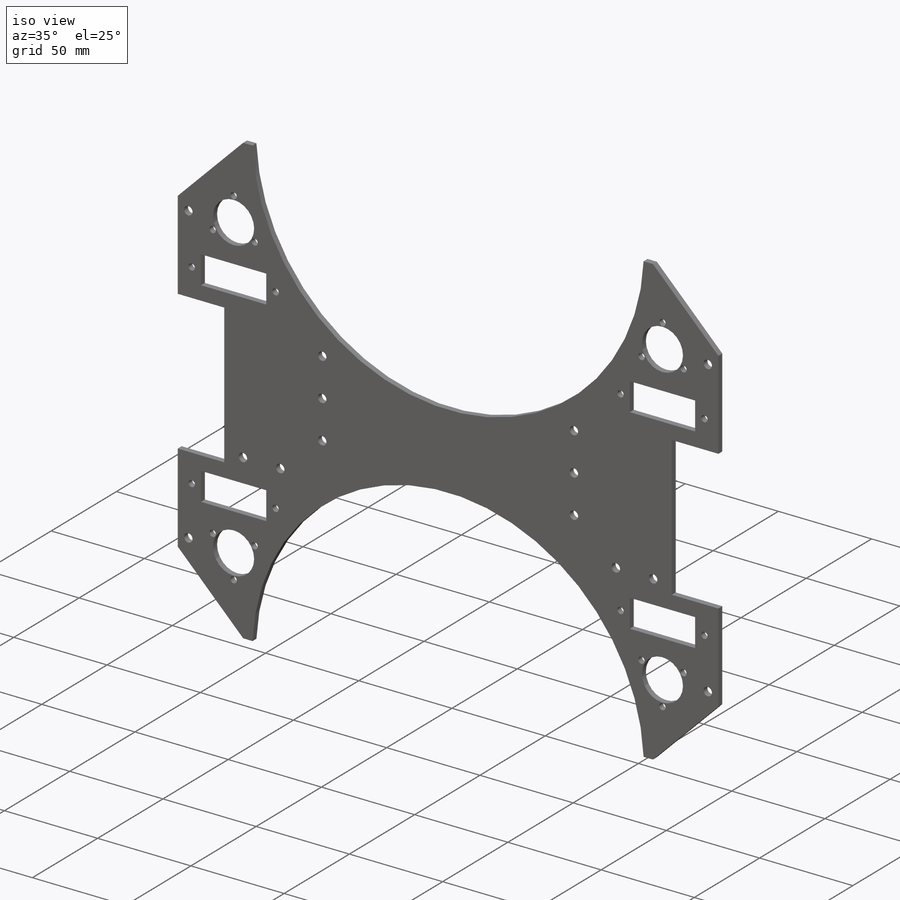
[diagram: iso view]
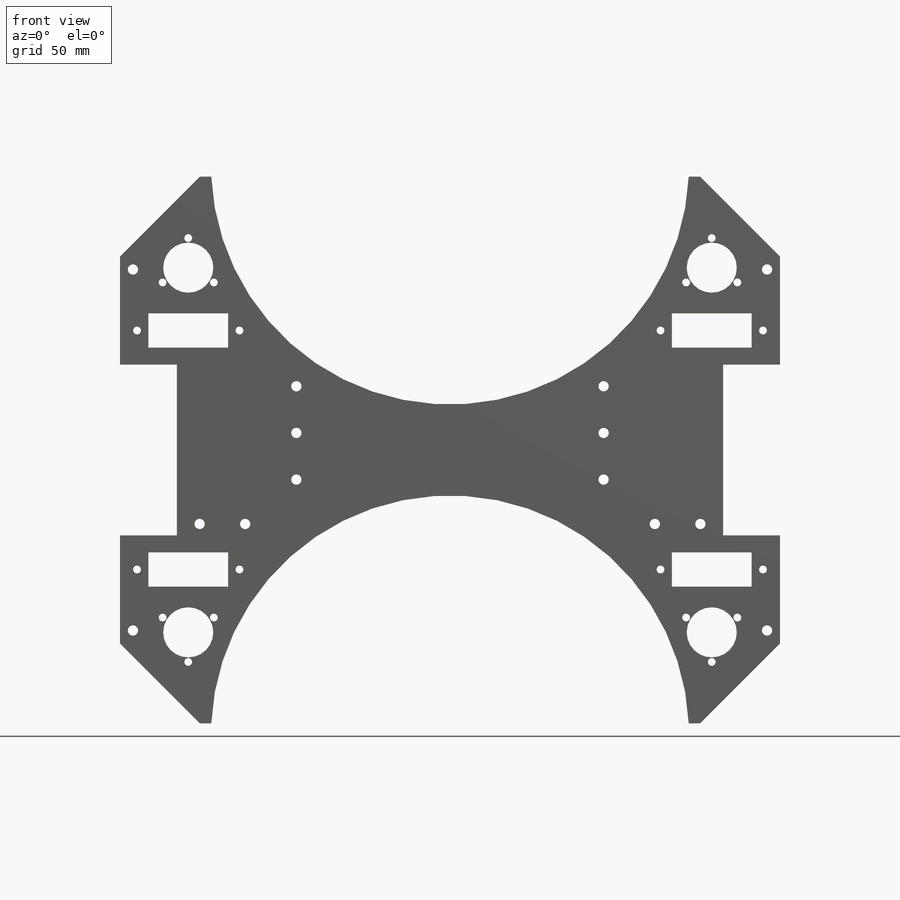
[diagram: front view]
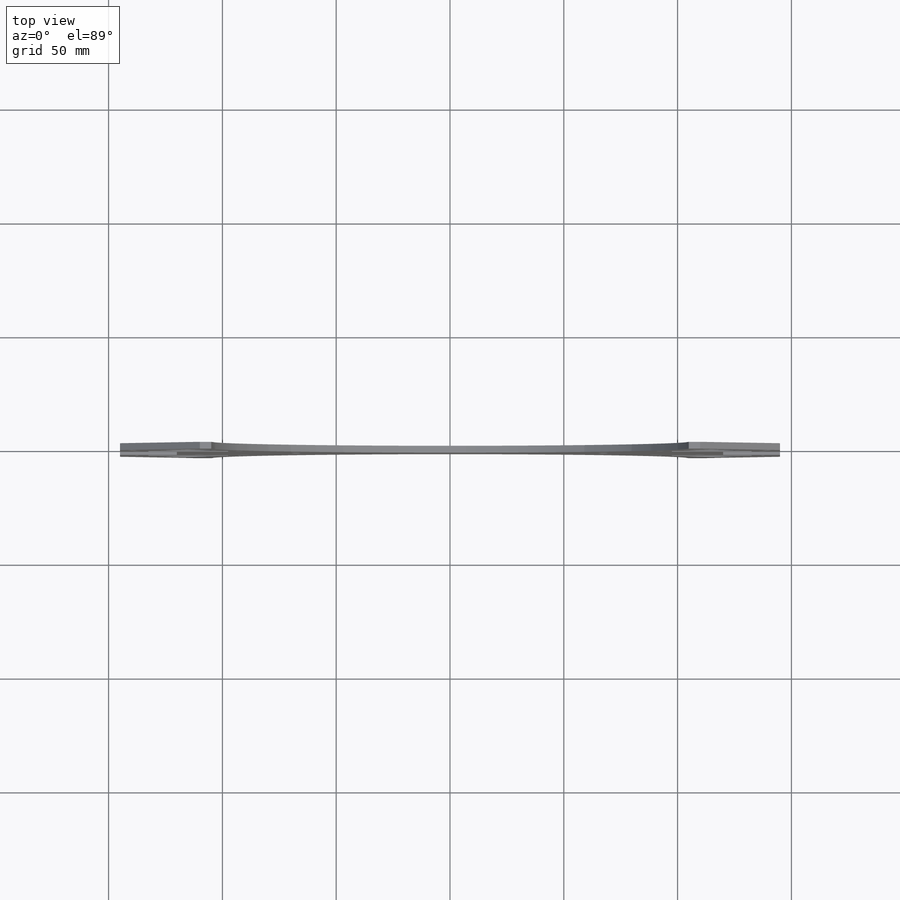
[diagram: top view]
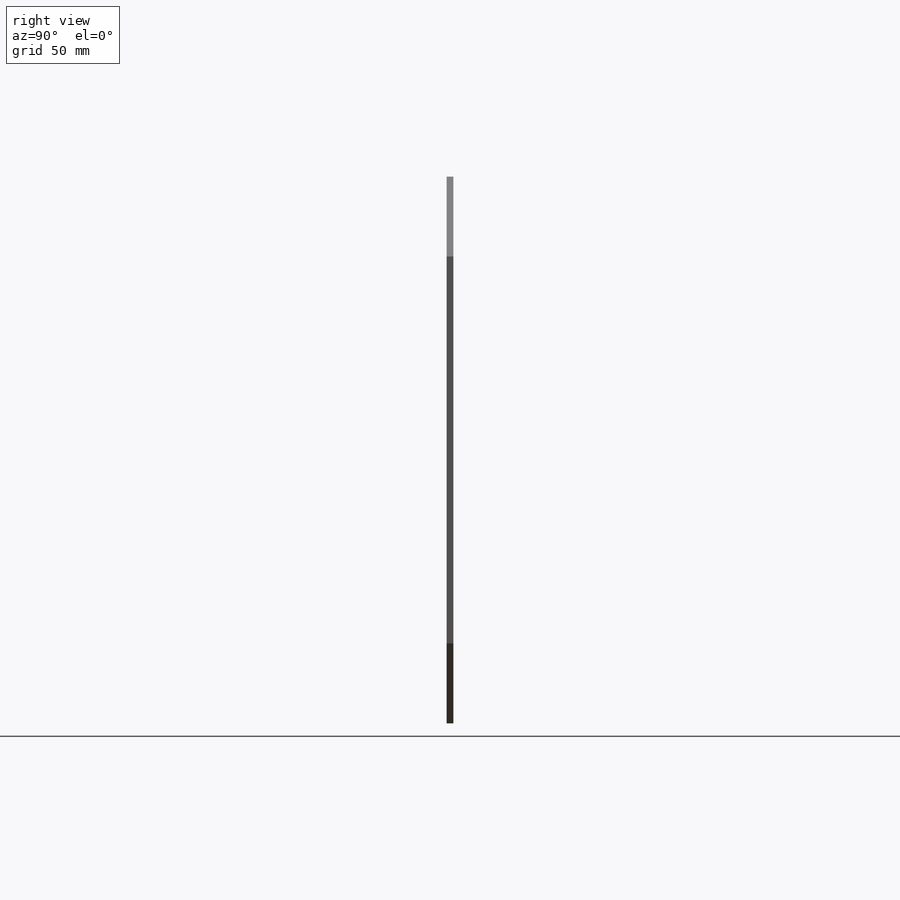
[diagram: right view]
SOLIDWORKS PART (.sldprt)
format: sldprt  version: not decoded by parser v0  size: 560,640 bytes
history: native  units: mm
features: sketch x17, hole x5, plane x3, material x1, extrude x1, cut_extrude x1 (+13 scaffold rows collapsed)
feature tree (41):
  scaffold x13  (default folders/planes/origin — collapsed)
  material  "Matériau <non spécifié>"
  plane  "Plan de face"
  plane  "Plan de dessus"
  plane  "Plan de droite"
  sketch  "Esquisse1"  dims[c1.D3=105.0mm c1.D4=105.0mm c2.D3=105.0mm c2.D8=105.0mm c2.D1=~7.199379mm c2.D2=~7.199379mm c3.D1=290.0mm c3.D2=290.0mm c3.D6=60.0mm c3.D7=60.0mm c3.D11=60.0mm c3.D4=60.0mm c3.D3=250.0mm c3.D5=5.0mm c3.D10=5.0mm c4.D11=~21.922359mm c4.D12=~21.922359mm c4.D4=85.0mm c4.D8=250.0mm c4.D9=75.0mm c5.D11=25.0mm c5.D12=37.5mm c5.D13=47.5mm c5.D14=47.5mm]
  extrude  "Boss.-Extru.1"  Depth=3mm
  sketch  "Esquisse4"  dims[D1=11.4mm D2=11.4mm D3=11.4mm D4=11.4mm D5=11.4mm D6=11.4mm D7=11.4mm D8=11.4mm D9=5.7mm D10=5.7mm D11=5.7mm D12=5.7mm D13=5.7mm D14=5.7mm D15=5.7mm D16=5.7mm D17=~40.813754mm]
  hole  "Dégagement M41"  Diameter=4.5mm Depth=10mm
  sketch  "Esquisse3D1"
  sketch  "Esquisse7"  dims[hole-wizard template sketch: 46 standard entries collapsed; hole parameters kept: c15.Diamètre du perçage=4.5mm c15.Profondeur du perçage=10.0mm c15.D3=~14.816244mm c15.Angle de pointe=118.0deg]
  sketch  "Esquisse9"  dims[D1=30.0mm D2=30.0mm D3=40.0mm]
  hole  "Dégagement M201"  Diameter=22mm Depth=10mm
  sketch  "Esquisse3D2"
  sketch  "Esquisse13"  dims[hole-wizard template sketch: 46 standard entries collapsed; hole parameters kept: c15.Diamètre du perçage=22.0mm c15.Profondeur du perçage=10.0mm c15.D3=~14.816244mm c15.Angle de pointe=118.0deg]
  sketch  "Esquisse14"  dims[c1.D1=13.0mm c2.D1=~119.765395deg]
  hole  "Dégagement M32"  Diameter=3.4mm Depth=10mm
  sketch  "Esquisse20"
  sketch  "Esquisse19"  dims[hole-wizard template sketch: 47 standard entries collapsed; hole parameters kept: c15.Profondeur du perçage=10.0mm c15.D3=~14.816244mm c15.Angle de pointe=118.0deg]
  sketch  "Esquisse21"  dims[c1.D1=35.0mm c1.D2=55.0mm c1.D3=40.0mm c1.D4=12.5mm c1.D5=12.5mm c1.D6=7.0mm c1.D7=7.0mm c1.D8=12.5mm c1.D9=12.5mm c1.D10=10.0mm c1.D11=10.0mm c1.D12=12.5mm c1.D13=~13.600992mm c2.D13=90.0deg c3.D13=27.5mm]
  hole  "Dégagement M43"  Diameter=4.5mm Depth=3mm
  sketch  "Esquisse25"
  sketch  "Esquisse26"  dims[hole-wizard template sketch: 61 standard entries collapsed; hole parameters above]
  sketch  "Esquisse27"  dims[D1=30.0mm D2=35.0mm D3=15.0mm D4=15.0mm]
  cut_extrude  "Enlèv. mat.-Extru.2"  [1 undecoded]
  sketch  "Esquisse30"  dims[D1=7.5mm D2=7.5mm D3=5.0mm D4=5.0mm]
  hole  "Dégagement M33"  Diameter=3.4mm Depth=7.01mm
  sketch  "Esquisse32"
  sketch  "Esquisse31"  dims[hole-wizard template sketch: 47 standard entries collapsed; hole parameters kept: c15.Profondeur du perçage=7.01mm c15.D3=~14.816244mm c15.Angle de pointe=118.0deg c16.D5=10.0mm c16.D8=60.0mm c16.D9=60.0mm]
decode coverage: 18 of 24 modeling features carry decoded parameters
note: ~ marks probable driven/reference dimensions
note: 1 parameter value undecoded
summary: Diameter pulled from absorbed wizard sketch
note: suppression state not decoded; provenance and decode notes live in map.json
